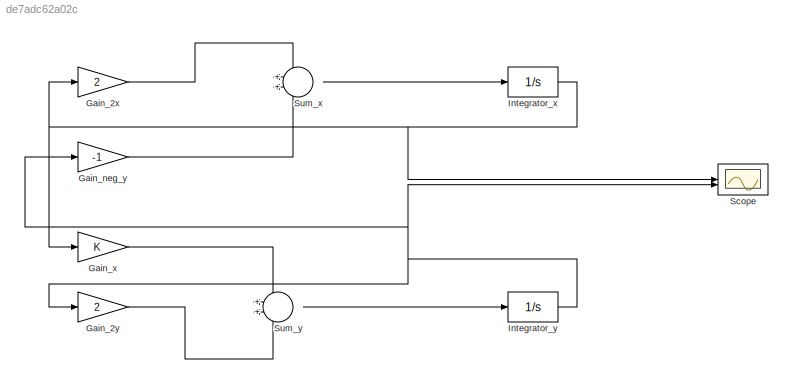
MODEL slx_de7adc62a02c
KIND model
CONFIG AbsTol = auto
CONFIG EnableMultiTasking = off
CONFIG FixedStep = auto
CONFIG MaxStep = auto
CONFIG MinStep = auto
CONFIG RelTol = 1e-3
CONFIG SampleTimeConstraint = Unconstrained
CONFIG SolverName = VariableStepAuto
CONFIG StartTime = 0.0
CONFIG StopTime = 1
BLOCK [Gain] Gain_2x
  Gain = 2
BLOCK [Gain] Gain_2y
  Gain = 2
BLOCK [Gain] Gain_neg_y
  Gain = -1
BLOCK [Gain] Gain_x
BLOCK [Integrator] Integrator_x
  InitialCondition = -1
BLOCK [Integrator] Integrator_y
BLOCK [Scope] Scope
  Floating = off
  NumInputPorts = 2
  ScopeSpecificationString = Simulink.scopes.TimeScopeBlockCfg('CurrentConfiguration', extmgr.ConfigurationSet(extmgr.Configuration('Core','General UI',true),extmgr.Configuration('Core','Source UI',true),extmgr.Configuration('Sources','WiredSimulink',true),extmgr.Configuration('Visuals','Time Domain',true,'SerializedDisplays',{struct('MinYLimReal','-6.99489','MaxYLimReal','0.77721','YLabelReal','','MinYLimMag','0.00000','MaxY...<+1466ch>
BLOCK [Sum] Sum_x
BLOCK [Sum] Sum_y
LINE Gain_2x:1 -> Sum_x:1
LINE Gain_2y:1 -> Sum_y:2
LINE Gain_neg_y:1 -> Sum_x:2
LINE Gain_x:1 -> Sum_y:1
NET Integrator_x:1 -> Gain_2x:1, Gain_x:1, Scope:1
NET Integrator_y:1 -> Gain_2y:1, Gain_neg_y:1, Scope:2
LINE Sum_x:1 -> Integrator_x:1
LINE Sum_y:1 -> Integrator_y:1
note: NET lines group one-source signal fan-out (src -> all destinations, sorted); 1:1 wires keep LINE
